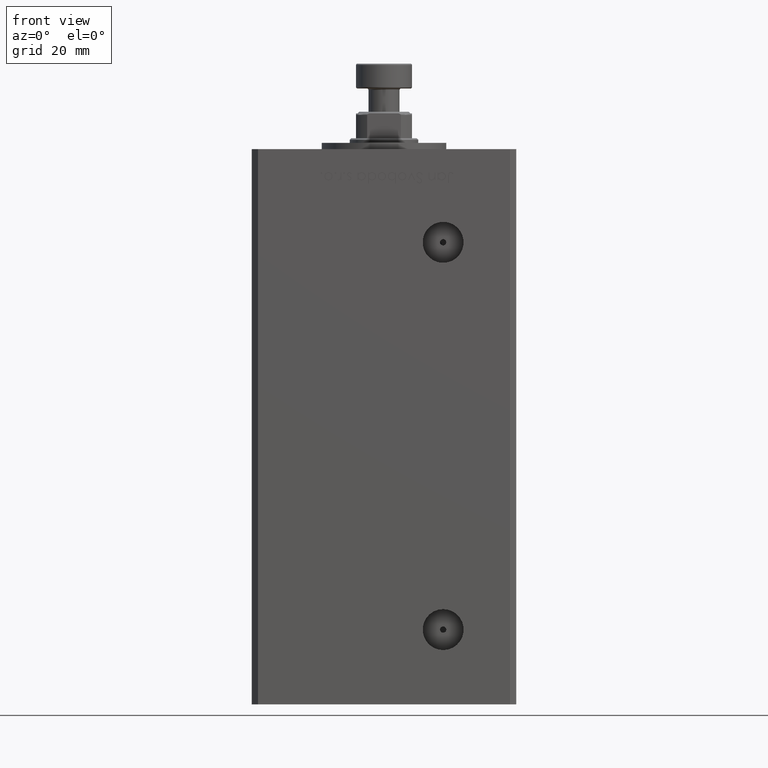
[diagram: clean part render]
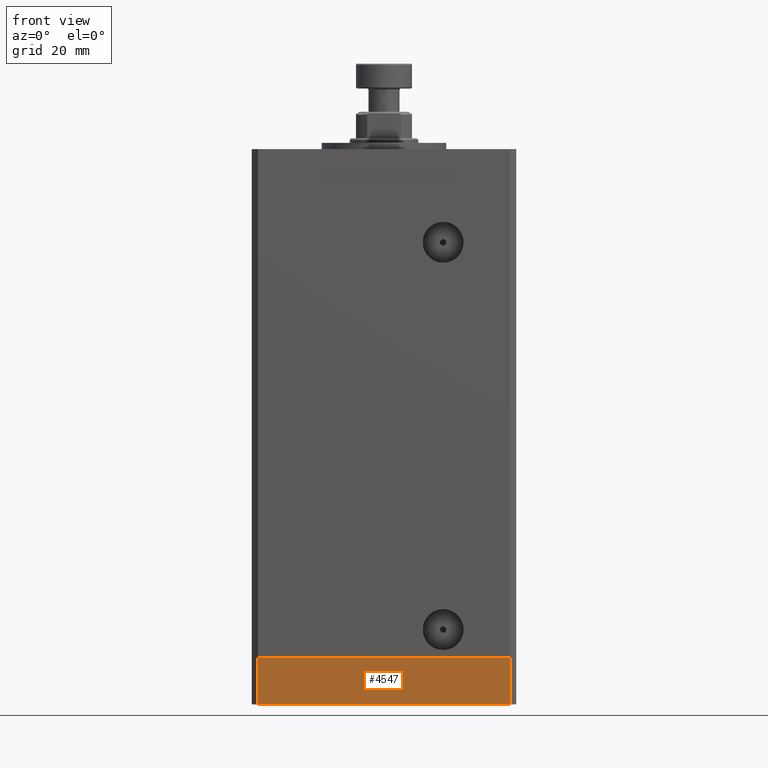
[diagram: same view with one face highlighted and labeled with its STEP entity id]
A machine part, front view. The second image highlights one B-rep face of the part: STEP entity #4547.
In plain terms, the highlighted planar face has unit normal (-0, -1, -0).
Its self-contained STEP definition (entity closure, byte-faithful):
#19 = EDGE_CURVE ( 'NONE', #25555, #34988, #50644, .T. ) ;
#3173 = DIRECTION ( 'NONE',  ( 0.000000000000000000, 0.000000000000000000, 1.000000000000000000 ) ) ;
#3803 = EDGE_LOOP ( 'NONE', ( #28855, #15335, #8929, #33311 ) ) ;
#4547 = ADVANCED_FACE ( 'NONE', ( #17620 ), #38128, .T. ) ;
#7090 = VECTOR ( 'NONE', #15000, 1000.000000000000000 ) ;
#7168 = CARTESIAN_POINT ( 'NONE',  ( 40.50000000000000000, -37.50000000000000711, -15.00000000000000000 ) ) ;
#7790 = EDGE_CURVE ( 'NONE', #15491, #25555, #36312, .T. ) ;
#8929 = ORIENTED_EDGE ( 'NONE', *, *, #7790, .T. ) ;
#13239 = VECTOR ( 'NONE', #3173, 1000.000000000000000 ) ;
#13628 = CARTESIAN_POINT ( 'NONE',  ( -40.49999999999999289, -37.50000000000002132, -15.00000000000000000 ) ) ;
#13882 = DIRECTION ( 'NONE',  ( 1.000000000000000000, 1.713307136767217096E-16, 0.000000000000000000 ) ) ;
#15000 = DIRECTION ( 'NONE',  ( 1.000000000000000000, 1.713307136767217096E-16, 0.000000000000000000 ) ) ;
#15335 = ORIENTED_EDGE ( 'NONE', *, *, #52376, .F. ) ;
#15491 = VERTEX_POINT ( 'NONE', #43093 ) ;
#17620 = FACE_OUTER_BOUND ( 'NONE', #3803, .T. ) ;
#18269 = VECTOR ( 'NONE', #25613, 1000.000000000000000 ) ;
#23493 = CARTESIAN_POINT ( 'NONE',  ( -40.49999999999999289, -37.50000000000002132, 0.000000000000000000 ) ) ;
#25555 = VERTEX_POINT ( 'NONE', #42155 ) ;
#25613 = DIRECTION ( 'NONE',  ( 0.000000000000000000, 0.000000000000000000, 1.000000000000000000 ) ) ;
#27808 = VERTEX_POINT ( 'NONE', #29149 ) ;
#28638 = CARTESIAN_POINT ( 'NONE',  ( 40.50000000000000000, -37.50000000000000711, 0.000000000000000000 ) ) ;
#28663 = VECTOR ( 'NONE', #44576, 1000.000000000000000 ) ;
#28855 = ORIENTED_EDGE ( 'NONE', *, *, #43568, .F. ) ;
#29149 = CARTESIAN_POINT ( 'NONE',  ( -40.49999999999999289, -37.50000000000002132, 0.000000000000000000 ) ) ;
#30272 = AXIS2_PLACEMENT_3D ( 'NONE', #13628, #50950, #13882 ) ;
#33311 = ORIENTED_EDGE ( 'NONE', *, *, #19, .T. ) ;
#34988 = VERTEX_POINT ( 'NONE', #28638 ) ;
#36312 = LINE ( 'NONE', #52613, #28663 ) ;
#38128 = PLANE ( 'NONE',  #30272 ) ;
#41883 = LINE ( 'NONE', #45879, #18269 ) ;
#42155 = CARTESIAN_POINT ( 'NONE',  ( 40.50000000000000000, -37.50000000000000711, -15.00000000000000000 ) ) ;
#43093 = CARTESIAN_POINT ( 'NONE',  ( -40.49999999999999289, -37.50000000000002132, -15.00000000000000000 ) ) ;
#43568 = EDGE_CURVE ( 'NONE', #27808, #34988, #51527, .T. ) ;
#44576 = DIRECTION ( 'NONE',  ( 1.000000000000000000, 1.713307136767217096E-16, 0.000000000000000000 ) ) ;
#45879 = CARTESIAN_POINT ( 'NONE',  ( -40.49999999999999289, -37.50000000000002132, -15.00000000000000000 ) ) ;
#50644 = LINE ( 'NONE', #7168, #13239 ) ;
#50950 = DIRECTION ( 'NONE',  ( 1.713307136767217096E-16, -1.000000000000000000, 0.000000000000000000 ) ) ;
#51527 = LINE ( 'NONE', #23493, #7090 ) ;
#52376 = EDGE_CURVE ( 'NONE', #15491, #27808, #41883, .T. ) ;
#52613 = CARTESIAN_POINT ( 'NONE',  ( -40.49999999999999289, -37.50000000000002132, -15.00000000000000000 ) ) ;